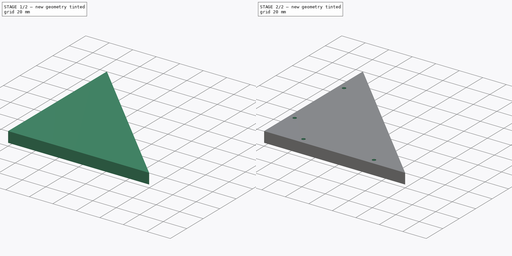
[diagram: build sequence overview — one tinted view per stage of 2, left to right]
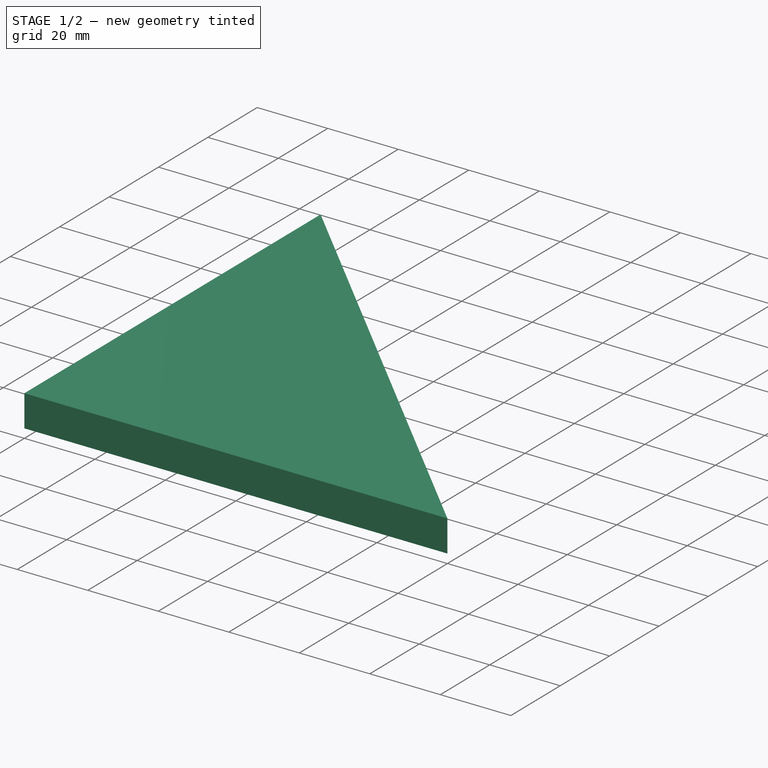
[diagram: stage 1 of 2 — iso view after this stage's code; geometry added in this stage tinted green]
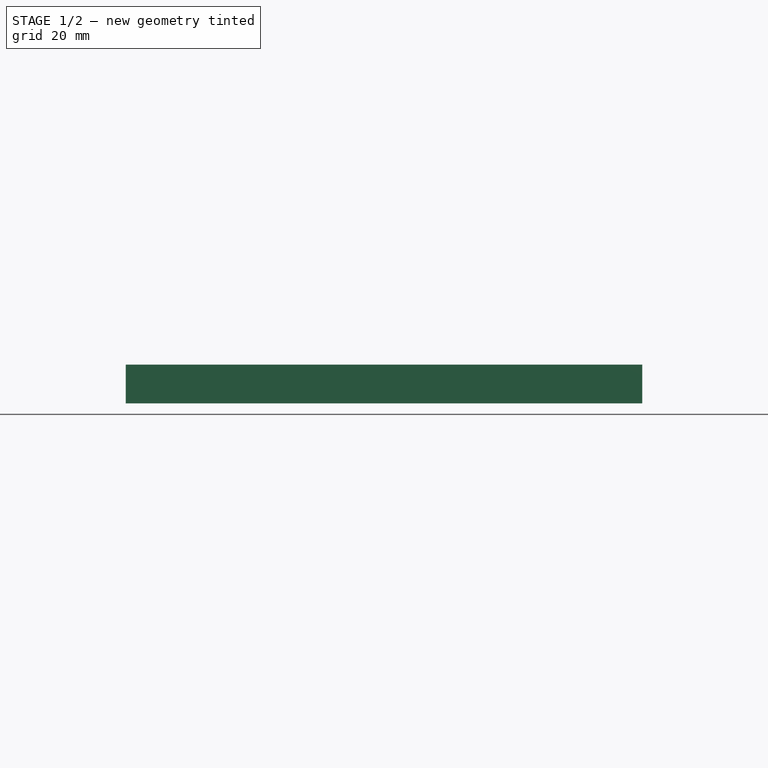
[diagram: stage 1 of 2 — front view after this stage's code; geometry added in this stage tinted green]
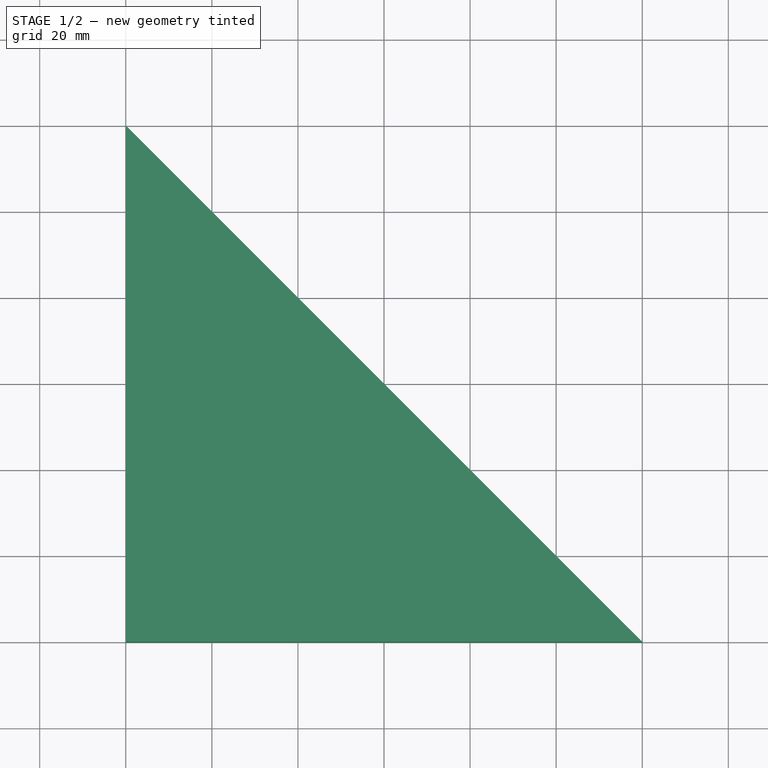
[diagram: stage 1 of 2 — top view after this stage's code; geometry added in this stage tinted green]
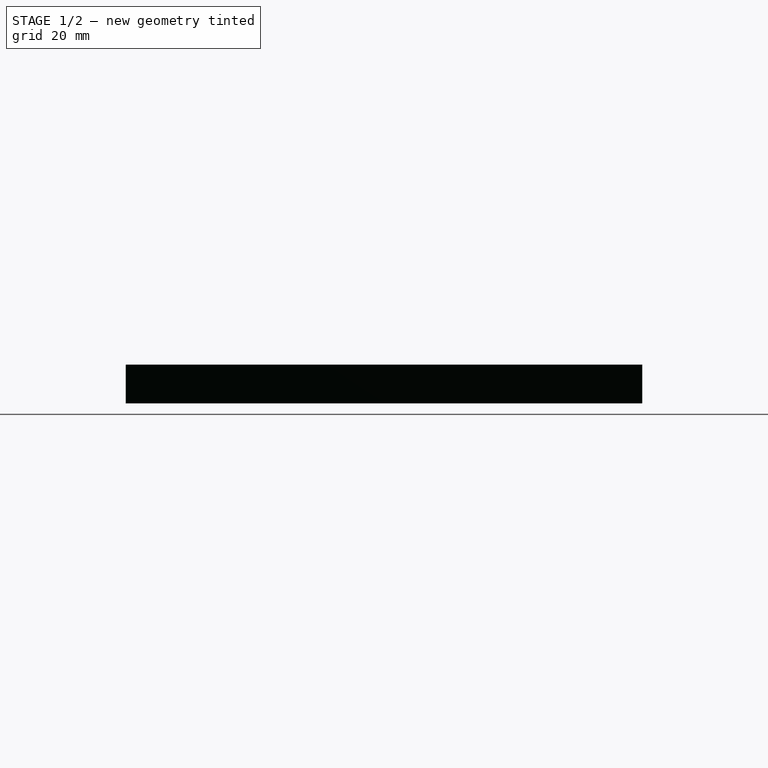
[diagram: stage 1 of 2 — right view after this stage's code; geometry added in this stage tinted green]
FCSTD DOCUMENT  (FreeCAD 0.18R16110 (Git))
Label: PlywoodCorner
License: All rights reserved
LicenseURL: http://en.wikipedia.org/wiki/All_rights_reserved
objects: Sketcher::SketchObject×2, PartDesign::Pad×1, PartDesign::Pocket×1, PartDesign::Body×1
note: 7 computed .brp shape members not serialized (recipe doc carries the construction recipe); baked Part::Feature solids carry a one-line shape summary decoded from their .brp

FEATURE [Sketcher::SketchObject] Sketch
  MapMode = 5
  Support = -> [XY_Plane]
  sketch-geometry (3):
    g0: LineSegment StartX=0 StartY=0 StartZ=0 EndX=0 EndY=120 EndZ=0
    g1: LineSegment StartX=0 StartY=120 StartZ=0 EndX=120 EndY=0 EndZ=0
    g2: LineSegment StartX=120 StartY=0 StartZ=0 EndX=0 EndY=0 EndZ=0
  constraints (8):
    c: Coincident(g0,g1)
    c: Coincident(g1,g2)
    c: Coincident(g2,g0)
    c: Coincident(g0,g-1)
    c: Horizontal(g2)
    c: Vertical(g0)
    c: DistanceY(g0,g0) = 120
    c: DistanceX(g2,g2) = 120
FEATURE [PartDesign::Pad] Pad
  Length = 9
  Length2 = 100
  Profile = -> Sketch
  Reversed = true
  Type = 0
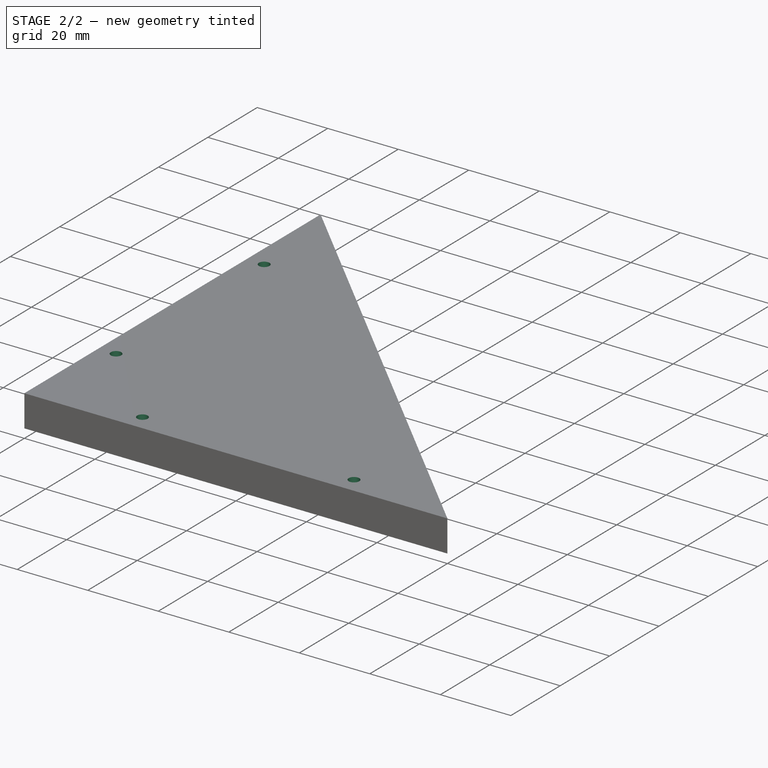
[diagram: stage 2 of 2 — iso view after this stage's code; geometry added in this stage tinted green]
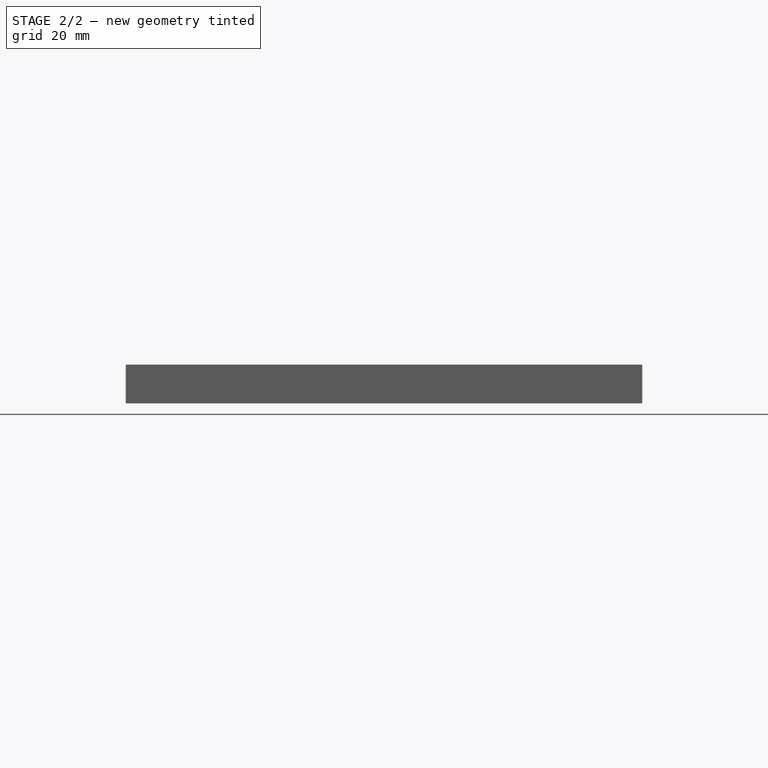
[diagram: stage 2 of 2 — front view after this stage's code; geometry added in this stage tinted green]
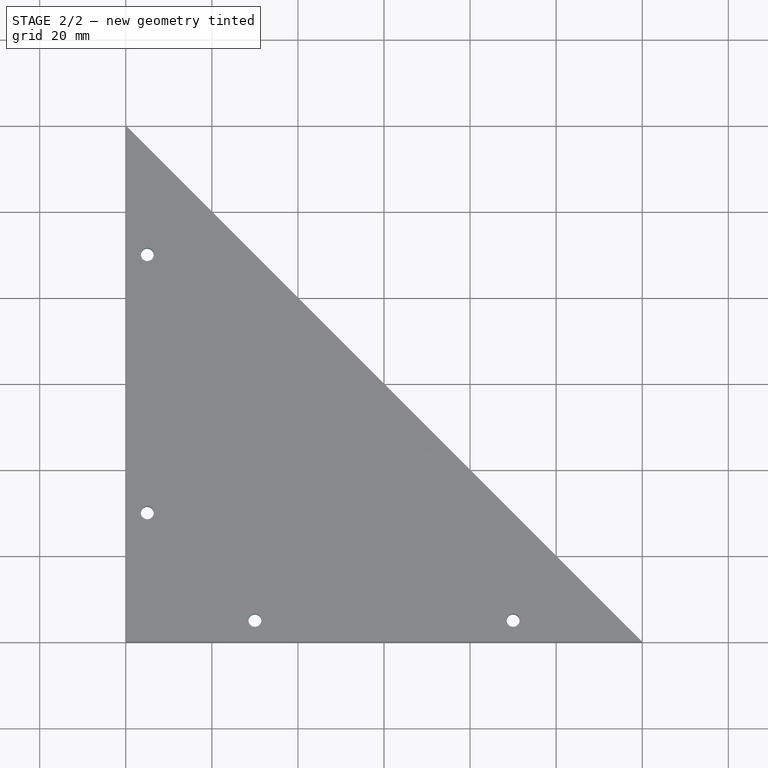
[diagram: stage 2 of 2 — top view after this stage's code; geometry added in this stage tinted green]
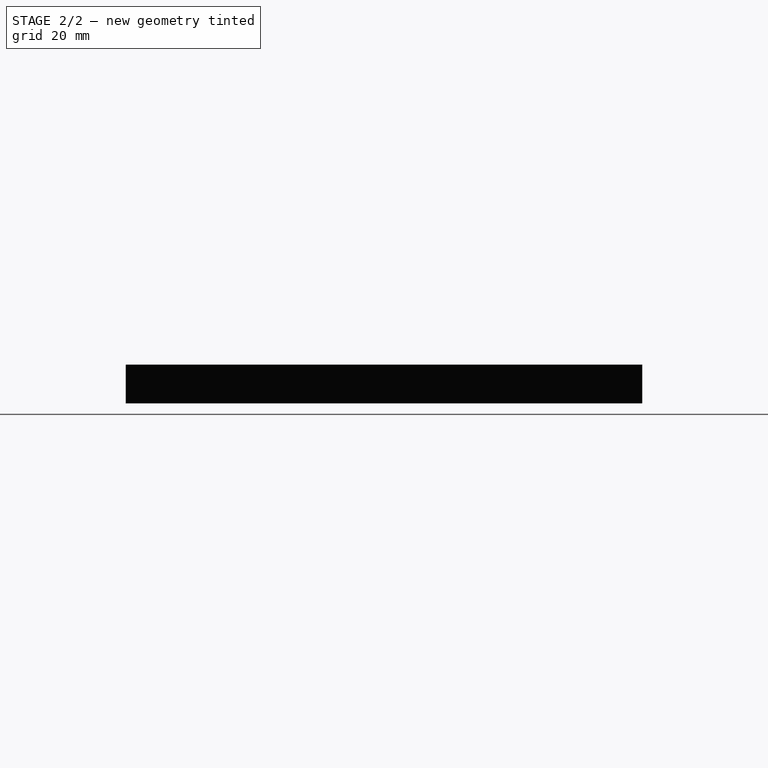
[diagram: stage 2 of 2 — right view after this stage's code; geometry added in this stage tinted green]
FEATURE [Sketcher::SketchObject] Sketch001
  MapMode = 5
  Support = -> [Pad]
  sketch-geometry (4):
    g0: Circle CenterX=5 CenterY=30 CenterZ=0 NormalX=0 NormalY=0 NormalZ=1 AngleXU=0 Radius=1.5
    g1: Circle CenterX=5 CenterY=90 CenterZ=0 NormalX=0 NormalY=0 NormalZ=1 AngleXU=0 Radius=1.5
    g2: Circle CenterX=30 CenterY=5 CenterZ=0 NormalX=0 NormalY=0 NormalZ=1 AngleXU=0 Radius=1.5
    g3: Circle CenterX=90 CenterY=5 CenterZ=0 NormalX=0 NormalY=0 NormalZ=1 AngleXU=0 Radius=1.5
  constraints (12):
    c: Diameter(g2) = 3
    c: Diameter(g0) = 3
    c: Diameter(g1) = 3
    c: DistanceX(g-2,g1) = 5
    c: DistanceX(g-2,g0) = 5
    c: DistanceY(g-1,g0) = 30
    c: DistanceY(g-1,g1) = 90
    c: DistanceY(g-1,g2) = 5
    c: DistanceX(g-1,g2) = 30
    c: Diameter(g3) = 3
    c: DistanceY(g-1,g3) = 5
    c: DistanceX(g-1,g3) = 90
FEATURE [PartDesign::Pocket] Pocket
  BaseFeature = -> Pad
  Length = 5
  Length2 = 100
  Profile = -> Sketch001
  Type = 1
FEATURE [PartDesign::Body] Body
  Group = -> [Sketch,Pad,Sketch001,Pocket]
  Origin = -> Origin
  Tip = -> Pocket
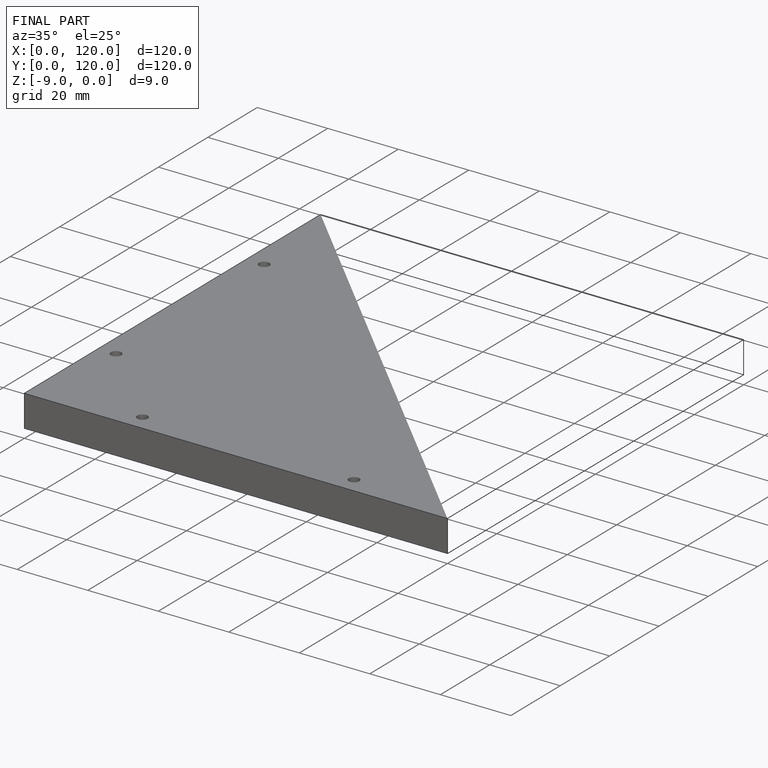
[diagram: finished part — iso view with bounding-box wireframe]
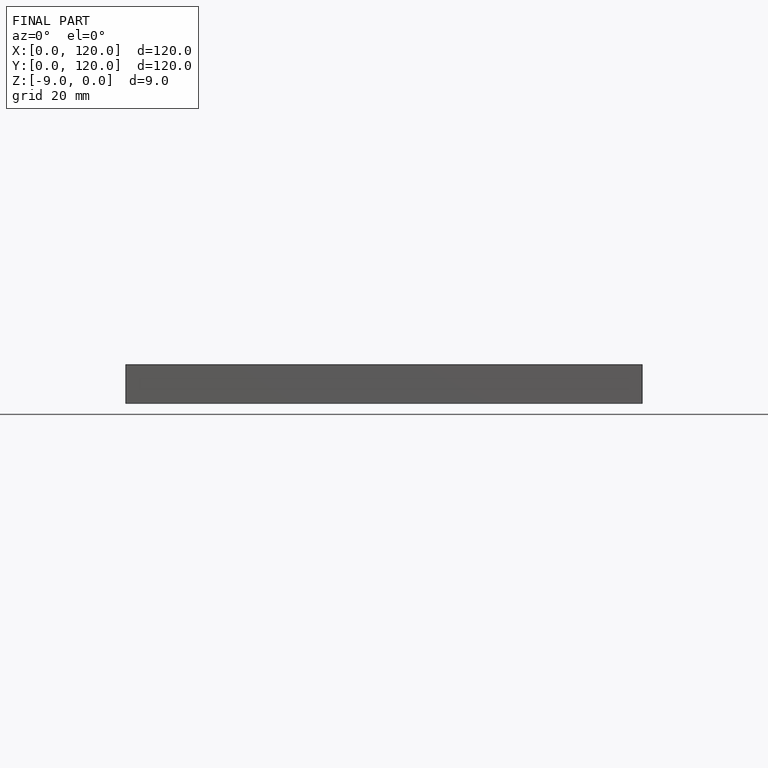
[diagram: finished part — front view with bounding-box wireframe]
